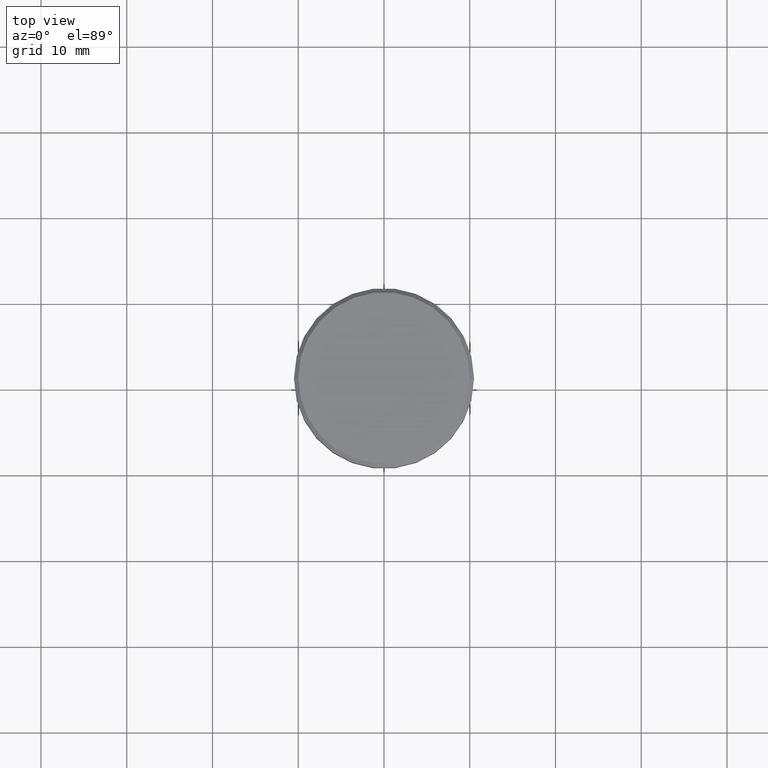
[diagram: clean part render]
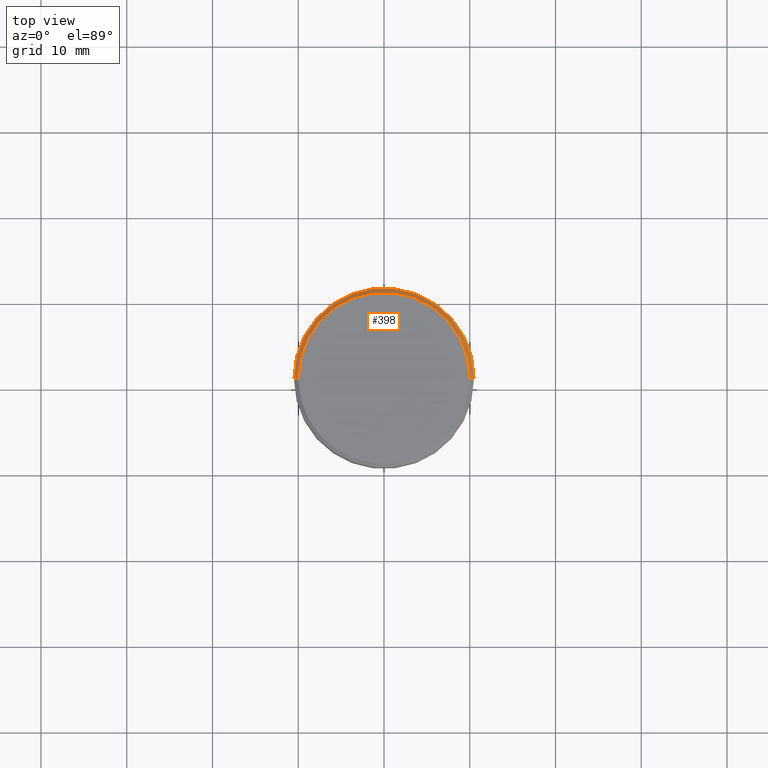
[diagram: same view with one face highlighted and labeled with its STEP entity id]
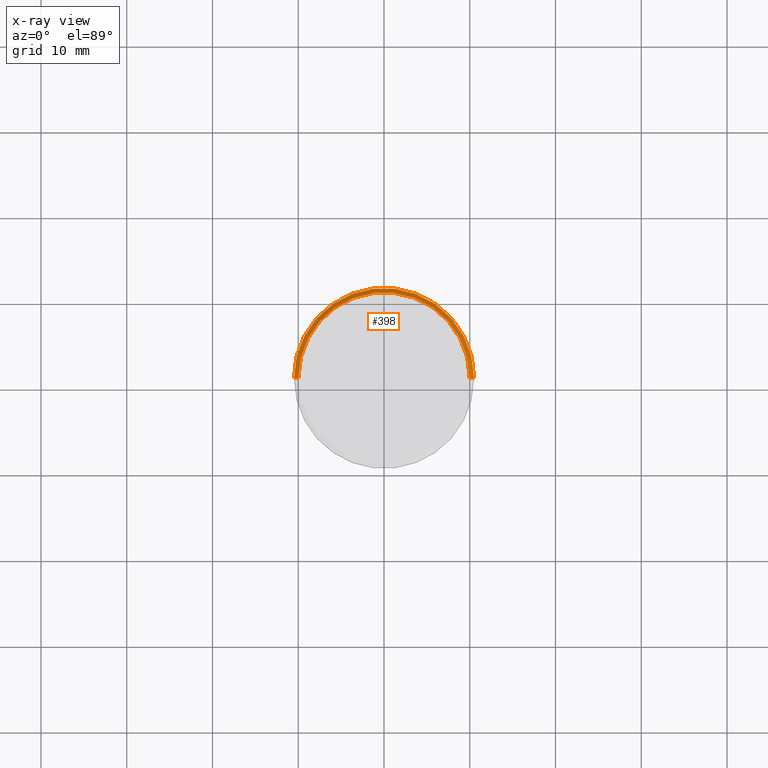
[diagram: x-ray of the same camera — body ghosted, the highlighted face saturated]
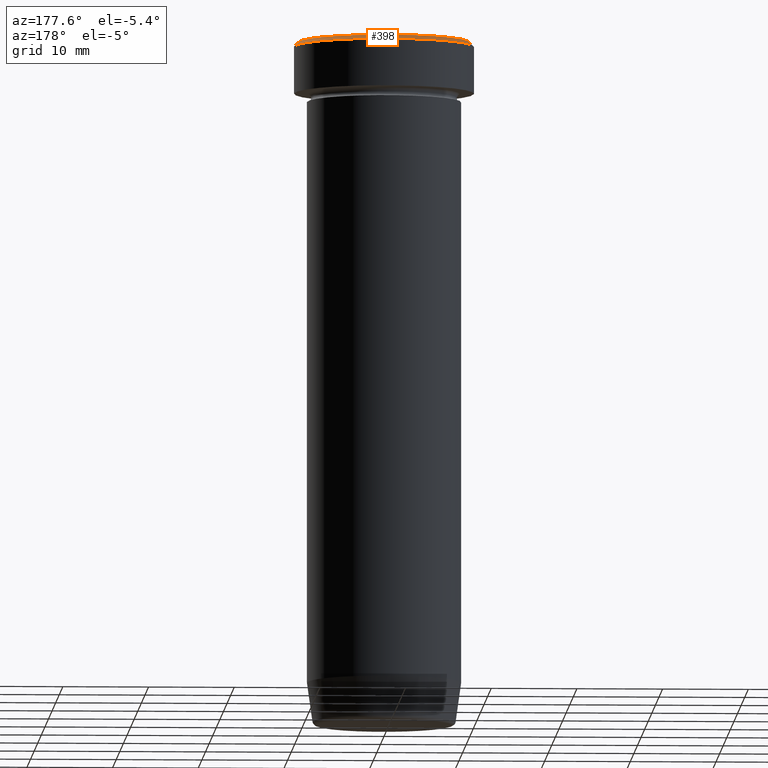
[diagram: same view with one face highlighted and labeled with its STEP entity id]
A machine part, top view. The second image highlights one B-rep face of the part: STEP entity #398.
The next image is the same camera in x-ray: the body ghosted, the highlighted face saturated — about 0% of this face is hidden behind the body in this view.
A second angle (auxiliary view) of the same face is appended — the face is thin or edge-on in the first view.
In plain terms, the highlighted conical surface has half-angle 45 deg.
Its self-contained STEP definition (entity closure, byte-faithful):
#12 = DIRECTION ( 'NONE',  ( 0.000000000000000000, 0.000000000000000000, -1.000000000000000000 ) ) ;
#21 = DIRECTION ( 'NONE',  ( -0.7071067811865450192, 0.000000000000000000, -0.7071067811865500152 ) ) ;
#61 = EDGE_CURVE ( 'NONE', #228, #456, #478, .T. ) ;
#62 = DIRECTION ( 'NONE',  ( -0.000000000000000000, -0.000000000000000000, 1.000000000000000000 ) ) ;
#69 = CIRCLE ( 'NONE', #107, 10.50000000000000000 ) ;
#74 = EDGE_CURVE ( 'NONE', #134, #591, #120, .T. ) ;
#78 = DIRECTION ( 'NONE',  ( 0.7071067811865450192, 8.659560562354902043E-17, -0.7071067811865500152 ) ) ;
#89 = CIRCLE ( 'NONE', #493, 10.00000000000000178 ) ;
#107 = AXIS2_PLACEMENT_3D ( 'NONE', #464, #12, #289 ) ;
#120 = LINE ( 'NONE', #350, #533 ) ;
#134 = VERTEX_POINT ( 'NONE', #250 ) ;
#199 = CARTESIAN_POINT ( 'NONE',  ( 0.000000000000000000, 0.000000000000000000, 0.000000000000000000 ) ) ;
#203 = AXIS2_PLACEMENT_3D ( 'NONE', #199, #514, #559 ) ;
#228 = VERTEX_POINT ( 'NONE', #509 ) ;
#247 = FACE_OUTER_BOUND ( 'NONE', #400, .T. ) ;
#250 = CARTESIAN_POINT ( 'NONE',  ( -10.00000000000000178, 0.000000000000000000, 0.000000000000000000 ) ) ;
#257 = EDGE_CURVE ( 'NONE', #228, #134, #89, .T. ) ;
#289 = DIRECTION ( 'NONE',  ( 1.000000000000000000, 0.000000000000000000, 0.000000000000000000 ) ) ;
#320 = CARTESIAN_POINT ( 'NONE',  ( -10.50000000000000000, 1.285879139104720831E-15, -0.5000000000000023315 ) ) ;
#337 = VECTOR ( 'NONE', #78, 1000.000000000000000 ) ;
#338 = EDGE_CURVE ( 'NONE', #591, #456, #69, .T. ) ;
#350 = CARTESIAN_POINT ( 'NONE',  ( -10.00000000000000178, 0.000000000000000000, 0.000000000000000000 ) ) ;
#382 = CONICAL_SURFACE ( 'NONE', #203, 10.00000000000000178, 0.7853981633974447263 ) ;
#398 = ADVANCED_FACE ( 'NONE', ( #247 ), #382, .T. ) ;
#400 = EDGE_LOOP ( 'NONE', ( #569, #548, #452, #443 ) ) ;
#443 = ORIENTED_EDGE ( 'NONE', *, *, #74, .F. ) ;
#452 = ORIENTED_EDGE ( 'NONE', *, *, #338, .F. ) ;
#456 = VERTEX_POINT ( 'NONE', #482 ) ;
#464 = CARTESIAN_POINT ( 'NONE',  ( 0.000000000000000000, 0.000000000000000000, -0.5000000000000023315 ) ) ;
#473 = CARTESIAN_POINT ( 'NONE',  ( 10.00000000000000178, 1.224646799147353454E-15, 0.000000000000000000 ) ) ;
#478 = LINE ( 'NONE', #473, #337 ) ;
#482 = CARTESIAN_POINT ( 'NONE',  ( 10.50000000000000000, 0.000000000000000000, -0.5000000000000023315 ) ) ;
#493 = AXIS2_PLACEMENT_3D ( 'NONE', #511, #62, #560 ) ;
#509 = CARTESIAN_POINT ( 'NONE',  ( 10.00000000000000178, 1.255262969126037241E-15, 0.000000000000000000 ) ) ;
#511 = CARTESIAN_POINT ( 'NONE',  ( 0.000000000000000000, 0.000000000000000000, 0.000000000000000000 ) ) ;
#514 = DIRECTION ( 'NONE',  ( 0.000000000000000000, 0.000000000000000000, -1.000000000000000000 ) ) ;
#533 = VECTOR ( 'NONE', #21, 1000.000000000000000 ) ;
#548 = ORIENTED_EDGE ( 'NONE', *, *, #61, .T. ) ;
#559 = DIRECTION ( 'NONE',  ( -1.000000000000000000, 0.000000000000000000, 0.000000000000000000 ) ) ;
#560 = DIRECTION ( 'NONE',  ( 1.000000000000000000, 0.000000000000000000, 0.000000000000000000 ) ) ;
#569 = ORIENTED_EDGE ( 'NONE', *, *, #257, .F. ) ;
#591 = VERTEX_POINT ( 'NONE', #320 ) ;